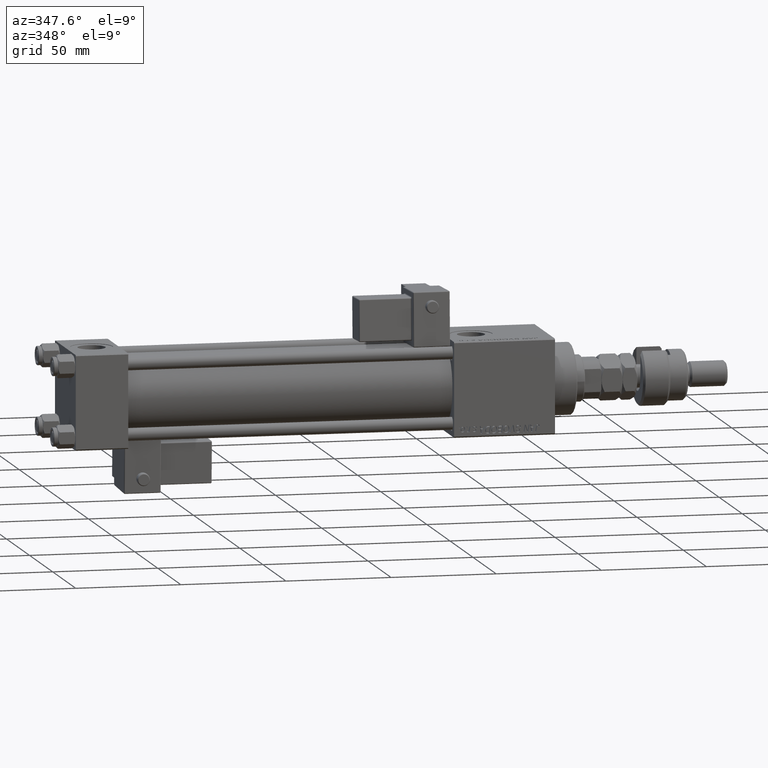
[diagram: clean part render]
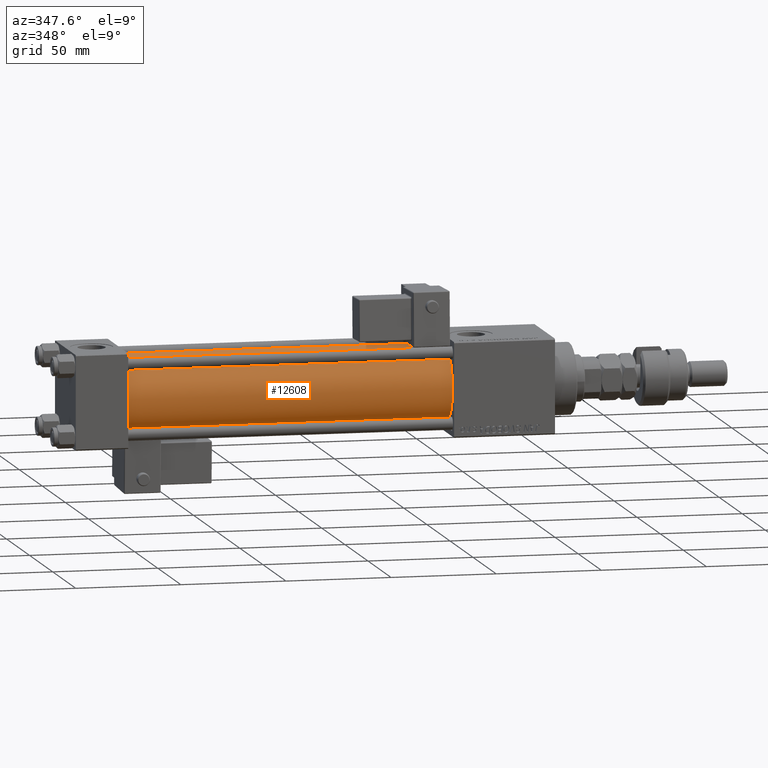
[diagram: same view with one face highlighted and labeled with its STEP entity id]
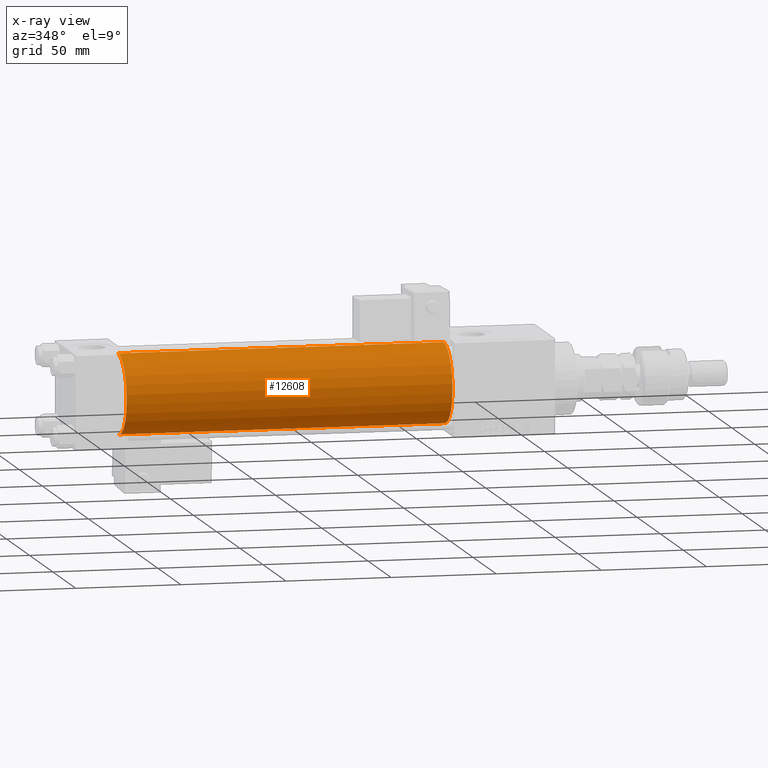
[diagram: x-ray of the same camera — body ghosted, the highlighted face saturated]
A machine part, auxiliary view. The second image highlights one B-rep face of the part: STEP entity #12608.
The next image is the same camera in x-ray: the body ghosted, the highlighted face saturated — about 0% of this face is hidden behind the body in this view.
In plain terms, the highlighted cylindrical surface (partial cylindrical patch) has radius 19 mm, axis along (-1, -0, -0).
Its self-contained STEP definition (entity closure, byte-faithful):
#4011 = DIRECTION ( 'NONE',  ( 0.000000000000000000, 0.000000000000000000, 1.000000000000000000 ) ) ;
#8082 = DIRECTION ( 'NONE',  ( 0.000000000000000000, 0.000000000000000000, -1.000000000000000000 ) ) ;
#11372 = VECTOR ( 'NONE', #17834, 1000.000000000000000 ) ;
#12171 = FACE_OUTER_BOUND ( 'NONE', #21496, .T. ) ;
#12608 = ADVANCED_FACE ( 'NONE', ( #12171 ), #25627, .T. ) ;
#13342 = EDGE_CURVE ( 'NONE', #16027, #51656, #40198, .T. ) ;
#15056 = CARTESIAN_POINT ( 'NONE',  ( 24.99999999999999289, -2.602085213965210642E-15, 19.00000000000000000 ) ) ;
#16027 = VERTEX_POINT ( 'NONE', #22408 ) ;
#17312 = ORIENTED_EDGE ( 'NONE', *, *, #24541, .T. ) ;
#17834 = DIRECTION ( 'NONE',  ( -1.000000000000000000, -0.000000000000000000, -0.000000000000000000 ) ) ;
#21496 = EDGE_LOOP ( 'NONE', ( #47700, #35372, #26032, #17312 ) ) ;
#22408 = CARTESIAN_POINT ( 'NONE',  ( 180.0000000000000000, -2.752562955852396712E-16, -19.00000000000000000 ) ) ;
#23823 = CARTESIAN_POINT ( 'NONE',  ( 180.0000000000000000, -2.602085213965210642E-15, 19.00000000000000000 ) ) ;
#24541 = EDGE_CURVE ( 'NONE', #46651, #51656, #35068, .T. ) ;
#25627 = CYLINDRICAL_SURFACE ( 'NONE', #39026, 19.00000000000000000 ) ;
#26032 = ORIENTED_EDGE ( 'NONE', *, *, #43627, .T. ) ;
#26465 = CARTESIAN_POINT ( 'NONE',  ( 180.0000000000000000, -2.602085213965210642E-15, 19.00000000000000000 ) ) ;
#27036 = AXIS2_PLACEMENT_3D ( 'NONE', #41170, #32529, #28327 ) ;
#28327 = DIRECTION ( 'NONE',  ( 0.000000000000000000, 0.000000000000000000, 1.000000000000000000 ) ) ;
#29552 = CARTESIAN_POINT ( 'NONE',  ( 180.0000000000000000, -2.602085213965210642E-15, 0.000000000000000000 ) ) ;
#29839 = DIRECTION ( 'NONE',  ( -1.000000000000000000, -0.000000000000000000, -0.000000000000000000 ) ) ;
#30181 = CARTESIAN_POINT ( 'NONE',  ( 24.99999999999999289, -2.752562955852396712E-16, -19.00000000000000000 ) ) ;
#31207 = AXIS2_PLACEMENT_3D ( 'NONE', #51496, #34159, #8082 ) ;
#32529 = DIRECTION ( 'NONE',  ( 1.000000000000000000, -0.000000000000000000, 0.000000000000000000 ) ) ;
#34159 = DIRECTION ( 'NONE',  ( 1.000000000000000000, 0.000000000000000000, 0.000000000000000000 ) ) ;
#35068 = CIRCLE ( 'NONE', #27036, 19.00000000000000000 ) ;
#35372 = ORIENTED_EDGE ( 'NONE', *, *, #46456, .F. ) ;
#39026 = AXIS2_PLACEMENT_3D ( 'NONE', #29552, #42113, #4011 ) ;
#40198 = LINE ( 'NONE', #44119, #11372 ) ;
#41170 = CARTESIAN_POINT ( 'NONE',  ( 24.99999999999999289, -2.602085213965210642E-15, 0.000000000000000000 ) ) ;
#42113 = DIRECTION ( 'NONE',  ( -1.000000000000000000, -0.000000000000000000, -0.000000000000000000 ) ) ;
#43627 = EDGE_CURVE ( 'NONE', #47866, #46651, #47709, .T. ) ;
#44119 = CARTESIAN_POINT ( 'NONE',  ( 180.0000000000000000, -2.752562955852396712E-16, -19.00000000000000000 ) ) ;
#46237 = VECTOR ( 'NONE', #29839, 1000.000000000000000 ) ;
#46456 = EDGE_CURVE ( 'NONE', #47866, #16027, #49952, .T. ) ;
#46651 = VERTEX_POINT ( 'NONE', #15056 ) ;
#47700 = ORIENTED_EDGE ( 'NONE', *, *, #13342, .F. ) ;
#47709 = LINE ( 'NONE', #26465, #46237 ) ;
#47866 = VERTEX_POINT ( 'NONE', #23823 ) ;
#49952 = CIRCLE ( 'NONE', #31207, 19.00000000000000000 ) ;
#51496 = CARTESIAN_POINT ( 'NONE',  ( 180.0000000000000000, -2.602085213965210642E-15, 0.000000000000000000 ) ) ;
#51656 = VERTEX_POINT ( 'NONE', #30181 ) ;